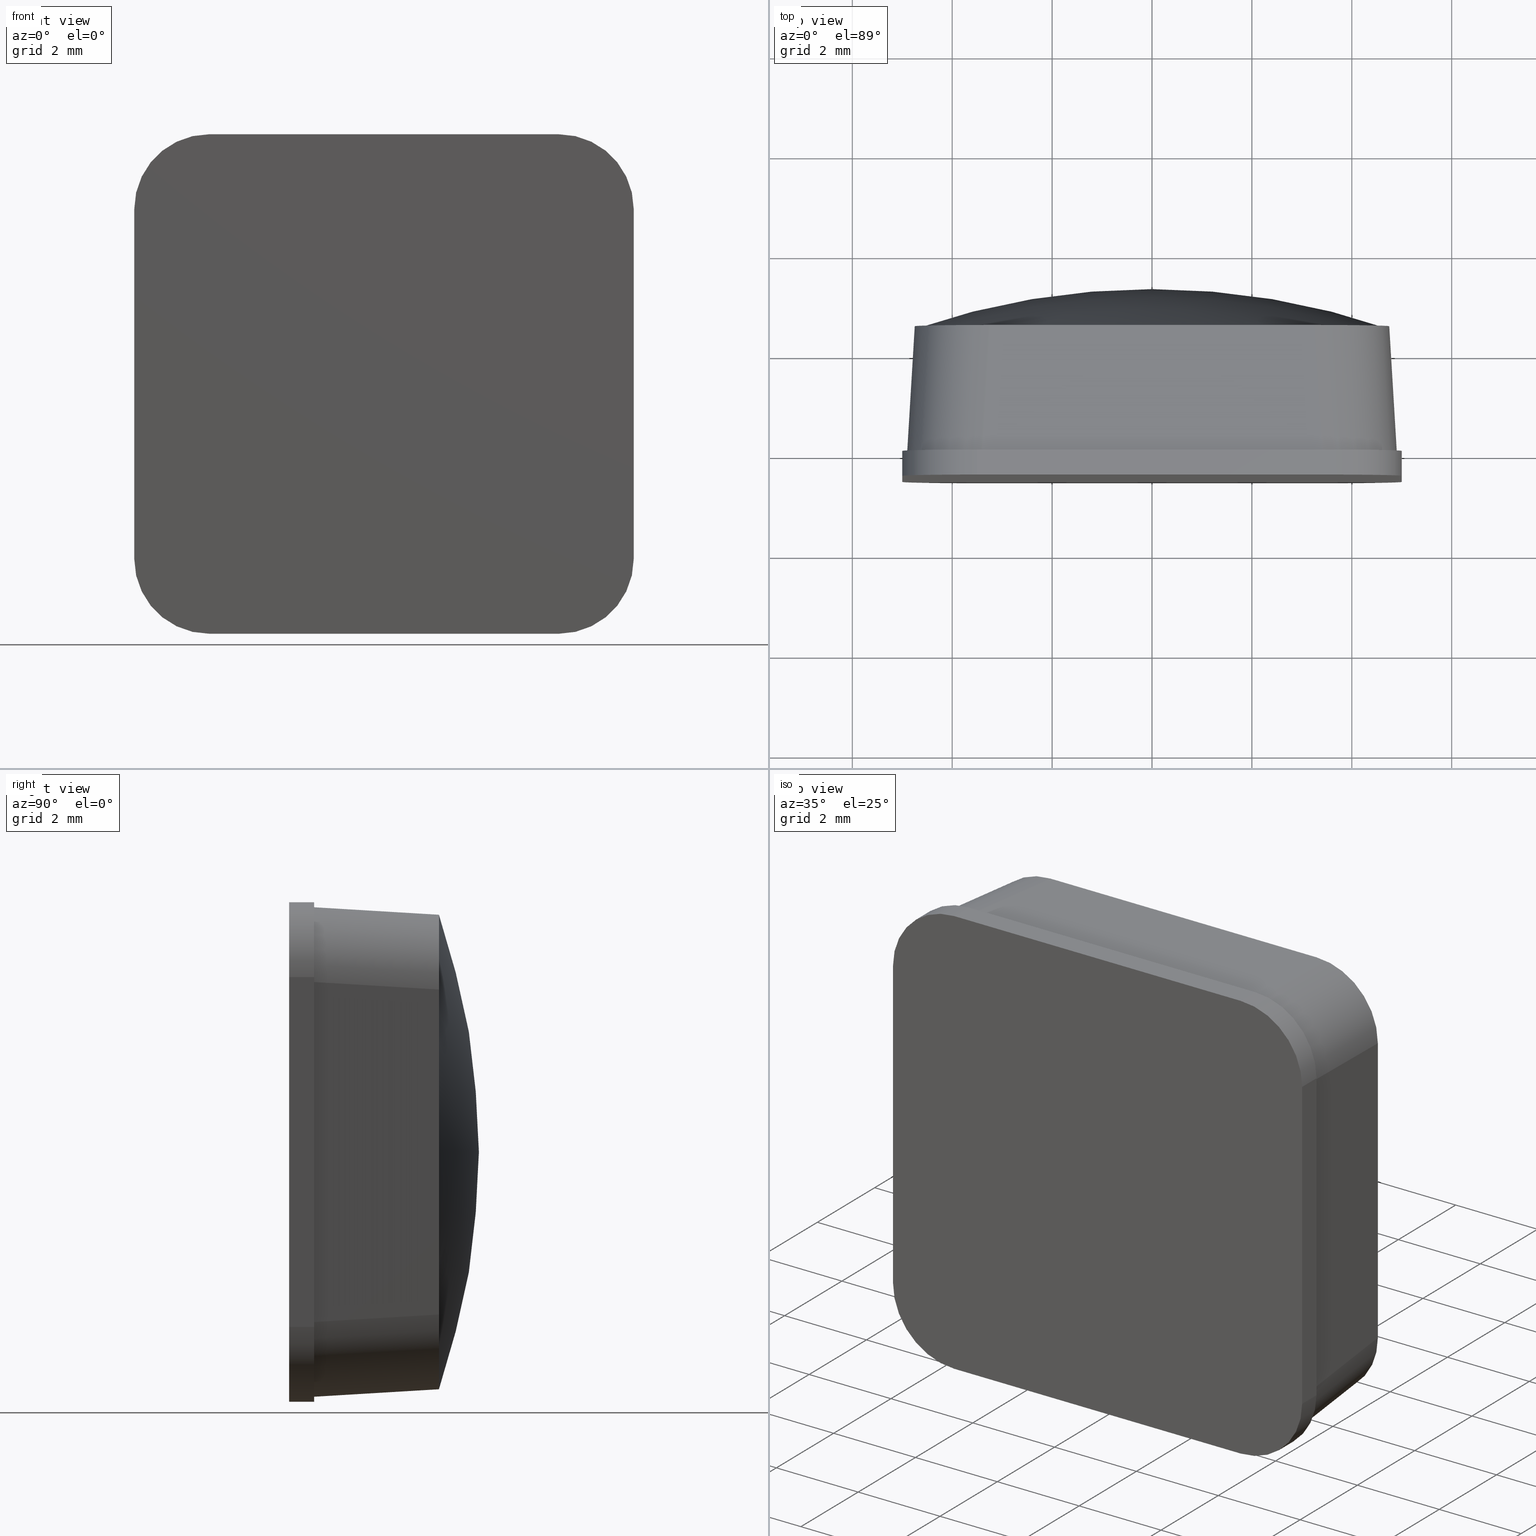
[diagram: canonical four-view strip — front | top / right | iso, engineering-drawing reading convention]
A machine part, canonical four-view strip (front | top / right | iso — engineering-drawing reading convention). The complete STEP part file that produces these views, byte-faithful:
ISO-10303-21;
HEADER;
/* Generated by software containing ST-Developer
 * from STEP Tools, Inc. (www.steptools.com) 
 */

FILE_DESCRIPTION(
/* description */ (''),
/* implementation_level */ '2;1');

FILE_NAME(
/* name */ '\\\\SYNOLOGYNAS\\web\\db2\\PR2-10-10\\\X2\B3C4BA74\X0\\\PR
2-10-10.stp',
/* time_stamp */ '2024-10-10T11:14:33+09:00',
/* author */ ('user'),
/* organization */ (''),
/* preprocessor_version */ 'ST-DEVELOPER v15.6',
/* originating_system */ 'Autodesk Inventor 2015',
/* authorisation */ '');

FILE_SCHEMA (('AUTOMOTIVE_DESIGN { 1 0 10303 214 3 1 1 }'));
ENDSEC;

DATA;
#10=MECHANICAL_DESIGN_GEOMETRIC_PRESENTATION_REPRESENTATION('',(#13),#693);
#11=SHAPE_REPRESENTATION_RELATIONSHIP('SRR','None',#702,#12);
#12=ADVANCED_BREP_SHAPE_REPRESENTATION($,(#14),#692);
#13=STYLED_ITEM('',(#711),#14);
#14=MANIFOLD_SOLID_BREP('\X2\C194B9ACB4DC\X0\1',#405);
#15=FACE_BOUND('',#85,.T.);
#16=SPHERICAL_SURFACE('',#445,14.5015625);
#17=ELLIPSE('',#416,1.50539031483533,1.5);
#18=ELLIPSE('',#417,1.50539031483533,1.5);
#19=ELLIPSE('',#424,1.50539031483533,1.5);
#20=ELLIPSE('',#425,1.50539031483533,1.5);
#21=ELLIPSE('',#433,1.50539031483533,1.5);
#22=ELLIPSE('',#434,1.50539031483533,1.5);
#23=ELLIPSE('',#441,1.50539031483533,1.5);
#24=ELLIPSE('',#442,1.50539031483533,1.5);
#25=PLANE('',#410);
#26=PLANE('',#414);
#27=PLANE('',#418);
#28=PLANE('',#419);
#29=PLANE('',#426);
#30=PLANE('',#427);
#31=PLANE('',#431);
#32=PLANE('',#435);
#33=PLANE('',#437);
#34=PLANE('',#443);
#35=PLANE('',#446);
#36=PLANE('',#447);
#37=PLANE('',#448);
#38=PLANE('',#449);
#39=FACE_OUTER_BOUND('',#62,.T.);
#40=FACE_OUTER_BOUND('',#63,.T.);
#41=FACE_OUTER_BOUND('',#64,.T.);
#42=FACE_OUTER_BOUND('',#65,.T.);
#43=FACE_OUTER_BOUND('',#66,.T.);
#44=FACE_OUTER_BOUND('',#67,.T.);
#45=FACE_OUTER_BOUND('',#68,.T.);
#46=FACE_OUTER_BOUND('',#69,.T.);
#47=FACE_OUTER_BOUND('',#70,.T.);
#48=FACE_OUTER_BOUND('',#71,.T.);
#49=FACE_OUTER_BOUND('',#72,.T.);
#50=FACE_OUTER_BOUND('',#73,.T.);
#51=FACE_OUTER_BOUND('',#74,.T.);
#52=FACE_OUTER_BOUND('',#75,.T.);
#53=FACE_OUTER_BOUND('',#76,.T.);
#54=FACE_OUTER_BOUND('',#77,.T.);
#55=FACE_OUTER_BOUND('',#78,.T.);
#56=FACE_OUTER_BOUND('',#79,.T.);
#57=FACE_OUTER_BOUND('',#80,.T.);
#58=FACE_OUTER_BOUND('',#81,.T.);
#59=FACE_OUTER_BOUND('',#82,.T.);
#60=FACE_OUTER_BOUND('',#83,.T.);
#61=FACE_OUTER_BOUND('',#84,.T.);
#62=EDGE_LOOP('',(#262,#263,#264,#265));
#63=EDGE_LOOP('',(#266,#267,#268,#269,#270,#271,#272,#273));
#64=EDGE_LOOP('',(#274,#275,#276,#277));
#65=EDGE_LOOP('',(#278,#279,#280,#281));
#66=EDGE_LOOP('',(#282,#283,#284,#285,#286));
#67=EDGE_LOOP('',(#287,#288,#289,#290));
#68=EDGE_LOOP('',(#291,#292,#293,#294));
#69=EDGE_LOOP('',(#295,#296,#297,#298));
#70=EDGE_LOOP('',(#299,#300,#301,#302,#303));
#71=EDGE_LOOP('',(#304,#305,#306,#307));
#72=EDGE_LOOP('',(#308,#309,#310,#311));
#73=EDGE_LOOP('',(#312,#313,#314,#315));
#74=EDGE_LOOP('',(#316,#317,#318,#319));
#75=EDGE_LOOP('',(#320,#321,#322,#323));
#76=EDGE_LOOP('',(#324,#325,#326,#327,#328));
#77=EDGE_LOOP('',(#329,#330,#331,#332));
#78=EDGE_LOOP('',(#333,#334,#335,#336));
#79=EDGE_LOOP('',(#337,#338,#339,#340));
#80=EDGE_LOOP('',(#341,#342,#343,#344));
#81=EDGE_LOOP('',(#345,#346,#347,#348,#349));
#82=EDGE_LOOP('',(#350,#351,#352,#353));
#83=EDGE_LOOP('',(#354,#355,#356,#357));
#84=EDGE_LOOP('',(#358,#359,#360,#361,#362,#363,#364,#365));
#85=EDGE_LOOP('',(#366,#367,#368,#369,#370,#371,#372,#373));
#86=LINE('',#580,#122);
#87=LINE('',#583,#123);
#88=LINE('',#586,#124);
#89=LINE('',#590,#125);
#90=LINE('',#594,#126);
#91=LINE('',#597,#127);
#92=LINE('',#600,#128);
#93=LINE('',#601,#129);
#94=LINE('',#607,#130);
#95=LINE('',#610,#131);
#96=LINE('',#613,#132);
#97=LINE('',#615,#133);
#98=LINE('',#617,#134);
#99=LINE('',#618,#135);
#100=LINE('',#621,#136);
#101=LINE('',#626,#137);
#102=LINE('',#631,#138);
#103=LINE('',#635,#139);
#104=LINE('',#637,#140);
#105=LINE('',#639,#141);
#106=LINE('',#640,#142);
#107=LINE('',#645,#143);
#108=LINE('',#648,#144);
#109=LINE('',#651,#145);
#110=LINE('',#652,#146);
#111=LINE('',#658,#147);
#112=LINE('',#661,#148);
#113=LINE('',#664,#149);
#114=LINE('',#666,#150);
#115=LINE('',#669,#151);
#116=LINE('',#671,#152);
#117=LINE('',#672,#153);
#118=LINE('',#675,#154);
#119=LINE('',#684,#155);
#120=LINE('',#686,#156);
#121=LINE('',#688,#157);
#122=VECTOR('',#456,0.5);
#123=VECTOR('',#459,0.5);
#124=VECTOR('',#462,7.);
#125=VECTOR('',#465,7.);
#126=VECTOR('',#468,7.);
#127=VECTOR('',#471,7.);
#128=VECTOR('',#474,7.);
#129=VECTOR('',#475,0.5);
#130=VECTOR('',#480,2.50898385805888);
#131=VECTOR('',#483,2.50898385805888);
#132=VECTOR('',#486,3.25269273180133);
#133=VECTOR('',#487,3.25269273180133);
#134=VECTOR('',#488,2.50898385805888);
#135=VECTOR('',#489,6.80538546360266);
#136=VECTOR('',#492,3.25269273180133);
#137=VECTOR('',#499,0.5);
#138=VECTOR('',#504,2.50898385805888);
#139=VECTOR('',#509,3.25269273180134);
#140=VECTOR('',#510,3.25269273180133);
#141=VECTOR('',#511,2.50898385805888);
#142=VECTOR('',#512,6.80538546360267);
#143=VECTOR('',#519,0.5);
#144=VECTOR('',#522,0.5);
#145=VECTOR('',#525,0.5);
#146=VECTOR('',#526,7.);
#147=VECTOR('',#531,2.50898385805888);
#148=VECTOR('',#534,2.50898385805888);
#149=VECTOR('',#537,3.25269273180133);
#150=VECTOR('',#540,3.25269273180133);
#151=VECTOR('',#543,6.80538546360266);
#152=VECTOR('',#544,2.50898385805888);
#153=VECTOR('',#545,3.25269273180133);
#154=VECTOR('',#548,0.5);
#155=VECTOR('',#565,6.80538546360266);
#156=VECTOR('',#568,7.);
#157=VECTOR('',#571,7.);
#158=CIRCLE('',#408,1.5);
#159=CIRCLE('',#409,1.5);
#160=CIRCLE('',#411,1.5);
#161=CIRCLE('',#412,1.5);
#162=CIRCLE('',#413,1.5);
#163=CIRCLE('',#420,4.75000000000002);
#164=CIRCLE('',#422,1.5);
#165=CIRCLE('',#428,4.75000000000002);
#166=CIRCLE('',#430,1.5);
#167=CIRCLE('',#436,4.75000000000002);
#168=CIRCLE('',#439,1.5);
#169=CIRCLE('',#444,4.75000000000002);
#170=VERTEX_POINT('',#576);
#171=VERTEX_POINT('',#577);
#172=VERTEX_POINT('',#579);
#173=VERTEX_POINT('',#581);
#174=VERTEX_POINT('',#585);
#175=VERTEX_POINT('',#587);
#176=VERTEX_POINT('',#589);
#177=VERTEX_POINT('',#591);
#178=VERTEX_POINT('',#593);
#179=VERTEX_POINT('',#595);
#180=VERTEX_POINT('',#599);
#181=VERTEX_POINT('',#603);
#182=VERTEX_POINT('',#604);
#183=VERTEX_POINT('',#606);
#184=VERTEX_POINT('',#608);
#185=VERTEX_POINT('',#612);
#186=VERTEX_POINT('',#614);
#187=VERTEX_POINT('',#616);
#188=VERTEX_POINT('',#620);
#189=VERTEX_POINT('',#624);
#190=VERTEX_POINT('',#628);
#191=VERTEX_POINT('',#630);
#192=VERTEX_POINT('',#634);
#193=VERTEX_POINT('',#636);
#194=VERTEX_POINT('',#638);
#195=VERTEX_POINT('',#644);
#196=VERTEX_POINT('',#646);
#197=VERTEX_POINT('',#650);
#198=VERTEX_POINT('',#654);
#199=VERTEX_POINT('',#655);
#200=VERTEX_POINT('',#657);
#201=VERTEX_POINT('',#659);
#202=VERTEX_POINT('',#663);
#203=VERTEX_POINT('',#668);
#204=VERTEX_POINT('',#670);
#205=VERTEX_POINT('',#674);
#206=EDGE_CURVE('',#170,#171,#158,.T.);
#207=EDGE_CURVE('',#171,#172,#86,.T.);
#208=EDGE_CURVE('',#172,#173,#159,.T.);
#209=EDGE_CURVE('',#173,#170,#87,.T.);
#210=EDGE_CURVE('',#170,#174,#88,.T.);
#211=EDGE_CURVE('',#175,#174,#160,.T.);
#212=EDGE_CURVE('',#175,#176,#89,.T.);
#213=EDGE_CURVE('',#177,#176,#161,.T.);
#214=EDGE_CURVE('',#177,#178,#90,.T.);
#215=EDGE_CURVE('',#179,#178,#162,.T.);
#216=EDGE_CURVE('',#179,#171,#91,.T.);
#217=EDGE_CURVE('',#173,#180,#92,.T.);
#218=EDGE_CURVE('',#174,#180,#93,.T.);
#219=EDGE_CURVE('',#181,#182,#17,.T.);
#220=EDGE_CURVE('',#182,#183,#94,.T.);
#221=EDGE_CURVE('',#183,#184,#18,.F.);
#222=EDGE_CURVE('',#184,#181,#95,.T.);
#223=EDGE_CURVE('',#182,#185,#96,.T.);
#224=EDGE_CURVE('',#185,#186,#97,.T.);
#225=EDGE_CURVE('',#187,#186,#98,.T.);
#226=EDGE_CURVE('',#183,#187,#99,.T.);
#227=EDGE_CURVE('',#188,#181,#100,.T.);
#228=EDGE_CURVE('',#188,#185,#163,.T.);
#229=EDGE_CURVE('',#180,#189,#164,.T.);
#230=EDGE_CURVE('',#189,#175,#101,.T.);
#231=EDGE_CURVE('',#186,#190,#19,.T.);
#232=EDGE_CURVE('',#190,#191,#102,.T.);
#233=EDGE_CURVE('',#191,#187,#20,.F.);
#234=EDGE_CURVE('',#190,#192,#103,.T.);
#235=EDGE_CURVE('',#192,#193,#104,.T.);
#236=EDGE_CURVE('',#194,#193,#105,.T.);
#237=EDGE_CURVE('',#191,#194,#106,.T.);
#238=EDGE_CURVE('',#185,#192,#165,.T.);
#239=EDGE_CURVE('',#178,#195,#107,.T.);
#240=EDGE_CURVE('',#195,#196,#166,.T.);
#241=EDGE_CURVE('',#196,#179,#108,.T.);
#242=EDGE_CURVE('',#197,#177,#109,.T.);
#243=EDGE_CURVE('',#197,#195,#110,.T.);
#244=EDGE_CURVE('',#198,#199,#21,.T.);
#245=EDGE_CURVE('',#199,#200,#111,.T.);
#246=EDGE_CURVE('',#200,#201,#22,.F.);
#247=EDGE_CURVE('',#201,#198,#112,.T.);
#248=EDGE_CURVE('',#202,#198,#113,.T.);
#249=EDGE_CURVE('',#202,#188,#167,.T.);
#250=EDGE_CURVE('',#199,#188,#114,.T.);
#251=EDGE_CURVE('',#203,#201,#115,.T.);
#252=EDGE_CURVE('',#204,#203,#116,.T.);
#253=EDGE_CURVE('',#204,#202,#117,.T.);
#254=EDGE_CURVE('',#176,#205,#118,.T.);
#255=EDGE_CURVE('',#205,#197,#168,.T.);
#256=EDGE_CURVE('',#193,#204,#23,.T.);
#257=EDGE_CURVE('',#203,#194,#24,.F.);
#258=EDGE_CURVE('',#192,#202,#169,.T.);
#259=EDGE_CURVE('',#200,#184,#119,.T.);
#260=EDGE_CURVE('',#189,#205,#120,.T.);
#261=EDGE_CURVE('',#196,#172,#121,.T.);
#262=ORIENTED_EDGE('',*,*,#206,.T.);
#263=ORIENTED_EDGE('',*,*,#207,.T.);
#264=ORIENTED_EDGE('',*,*,#208,.T.);
#265=ORIENTED_EDGE('',*,*,#209,.T.);
#266=ORIENTED_EDGE('',*,*,#206,.F.);
#267=ORIENTED_EDGE('',*,*,#210,.T.);
#268=ORIENTED_EDGE('',*,*,#211,.F.);
#269=ORIENTED_EDGE('',*,*,#212,.T.);
#270=ORIENTED_EDGE('',*,*,#213,.F.);
#271=ORIENTED_EDGE('',*,*,#214,.T.);
#272=ORIENTED_EDGE('',*,*,#215,.F.);
#273=ORIENTED_EDGE('',*,*,#216,.T.);
#274=ORIENTED_EDGE('',*,*,#209,.F.);
#275=ORIENTED_EDGE('',*,*,#217,.T.);
#276=ORIENTED_EDGE('',*,*,#218,.F.);
#277=ORIENTED_EDGE('',*,*,#210,.F.);
#278=ORIENTED_EDGE('',*,*,#219,.T.);
#279=ORIENTED_EDGE('',*,*,#220,.T.);
#280=ORIENTED_EDGE('',*,*,#221,.T.);
#281=ORIENTED_EDGE('',*,*,#222,.T.);
#282=ORIENTED_EDGE('',*,*,#220,.F.);
#283=ORIENTED_EDGE('',*,*,#223,.T.);
#284=ORIENTED_EDGE('',*,*,#224,.T.);
#285=ORIENTED_EDGE('',*,*,#225,.F.);
#286=ORIENTED_EDGE('',*,*,#226,.F.);
#287=ORIENTED_EDGE('',*,*,#219,.F.);
#288=ORIENTED_EDGE('',*,*,#227,.F.);
#289=ORIENTED_EDGE('',*,*,#228,.T.);
#290=ORIENTED_EDGE('',*,*,#223,.F.);
#291=ORIENTED_EDGE('',*,*,#211,.T.);
#292=ORIENTED_EDGE('',*,*,#218,.T.);
#293=ORIENTED_EDGE('',*,*,#229,.T.);
#294=ORIENTED_EDGE('',*,*,#230,.T.);
#295=ORIENTED_EDGE('',*,*,#231,.T.);
#296=ORIENTED_EDGE('',*,*,#232,.T.);
#297=ORIENTED_EDGE('',*,*,#233,.T.);
#298=ORIENTED_EDGE('',*,*,#225,.T.);
#299=ORIENTED_EDGE('',*,*,#232,.F.);
#300=ORIENTED_EDGE('',*,*,#234,.T.);
#301=ORIENTED_EDGE('',*,*,#235,.T.);
#302=ORIENTED_EDGE('',*,*,#236,.F.);
#303=ORIENTED_EDGE('',*,*,#237,.F.);
#304=ORIENTED_EDGE('',*,*,#231,.F.);
#305=ORIENTED_EDGE('',*,*,#224,.F.);
#306=ORIENTED_EDGE('',*,*,#238,.T.);
#307=ORIENTED_EDGE('',*,*,#234,.F.);
#308=ORIENTED_EDGE('',*,*,#215,.T.);
#309=ORIENTED_EDGE('',*,*,#239,.T.);
#310=ORIENTED_EDGE('',*,*,#240,.T.);
#311=ORIENTED_EDGE('',*,*,#241,.T.);
#312=ORIENTED_EDGE('',*,*,#239,.F.);
#313=ORIENTED_EDGE('',*,*,#214,.F.);
#314=ORIENTED_EDGE('',*,*,#242,.F.);
#315=ORIENTED_EDGE('',*,*,#243,.T.);
#316=ORIENTED_EDGE('',*,*,#244,.T.);
#317=ORIENTED_EDGE('',*,*,#245,.T.);
#318=ORIENTED_EDGE('',*,*,#246,.T.);
#319=ORIENTED_EDGE('',*,*,#247,.T.);
#320=ORIENTED_EDGE('',*,*,#244,.F.);
#321=ORIENTED_EDGE('',*,*,#248,.F.);
#322=ORIENTED_EDGE('',*,*,#249,.T.);
#323=ORIENTED_EDGE('',*,*,#250,.F.);
#324=ORIENTED_EDGE('',*,*,#247,.F.);
#325=ORIENTED_EDGE('',*,*,#251,.F.);
#326=ORIENTED_EDGE('',*,*,#252,.F.);
#327=ORIENTED_EDGE('',*,*,#253,.T.);
#328=ORIENTED_EDGE('',*,*,#248,.T.);
#329=ORIENTED_EDGE('',*,*,#213,.T.);
#330=ORIENTED_EDGE('',*,*,#254,.T.);
#331=ORIENTED_EDGE('',*,*,#255,.T.);
#332=ORIENTED_EDGE('',*,*,#242,.T.);
#333=ORIENTED_EDGE('',*,*,#256,.T.);
#334=ORIENTED_EDGE('',*,*,#252,.T.);
#335=ORIENTED_EDGE('',*,*,#257,.T.);
#336=ORIENTED_EDGE('',*,*,#236,.T.);
#337=ORIENTED_EDGE('',*,*,#256,.F.);
#338=ORIENTED_EDGE('',*,*,#235,.F.);
#339=ORIENTED_EDGE('',*,*,#258,.T.);
#340=ORIENTED_EDGE('',*,*,#253,.F.);
#341=ORIENTED_EDGE('',*,*,#249,.F.);
#342=ORIENTED_EDGE('',*,*,#258,.F.);
#343=ORIENTED_EDGE('',*,*,#238,.F.);
#344=ORIENTED_EDGE('',*,*,#228,.F.);
#345=ORIENTED_EDGE('',*,*,#222,.F.);
#346=ORIENTED_EDGE('',*,*,#259,.F.);
#347=ORIENTED_EDGE('',*,*,#245,.F.);
#348=ORIENTED_EDGE('',*,*,#250,.T.);
#349=ORIENTED_EDGE('',*,*,#227,.T.);
#350=ORIENTED_EDGE('',*,*,#230,.F.);
#351=ORIENTED_EDGE('',*,*,#260,.T.);
#352=ORIENTED_EDGE('',*,*,#254,.F.);
#353=ORIENTED_EDGE('',*,*,#212,.F.);
#354=ORIENTED_EDGE('',*,*,#207,.F.);
#355=ORIENTED_EDGE('',*,*,#216,.F.);
#356=ORIENTED_EDGE('',*,*,#241,.F.);
#357=ORIENTED_EDGE('',*,*,#261,.T.);
#358=ORIENTED_EDGE('',*,*,#208,.F.);
#359=ORIENTED_EDGE('',*,*,#261,.F.);
#360=ORIENTED_EDGE('',*,*,#240,.F.);
#361=ORIENTED_EDGE('',*,*,#243,.F.);
#362=ORIENTED_EDGE('',*,*,#255,.F.);
#363=ORIENTED_EDGE('',*,*,#260,.F.);
#364=ORIENTED_EDGE('',*,*,#229,.F.);
#365=ORIENTED_EDGE('',*,*,#217,.F.);
#366=ORIENTED_EDGE('',*,*,#226,.T.);
#367=ORIENTED_EDGE('',*,*,#233,.F.);
#368=ORIENTED_EDGE('',*,*,#237,.T.);
#369=ORIENTED_EDGE('',*,*,#257,.F.);
#370=ORIENTED_EDGE('',*,*,#251,.T.);
#371=ORIENTED_EDGE('',*,*,#246,.F.);
#372=ORIENTED_EDGE('',*,*,#259,.T.);
#373=ORIENTED_EDGE('',*,*,#221,.F.);
#374=CYLINDRICAL_SURFACE('',#407,1.5);
#375=CYLINDRICAL_SURFACE('',#415,1.5);
#376=CYLINDRICAL_SURFACE('',#421,1.5);
#377=CYLINDRICAL_SURFACE('',#423,1.5);
#378=CYLINDRICAL_SURFACE('',#429,1.5);
#379=CYLINDRICAL_SURFACE('',#432,1.5);
#380=CYLINDRICAL_SURFACE('',#438,1.5);
#381=CYLINDRICAL_SURFACE('',#440,1.5);
#382=ADVANCED_FACE('',(#39),#374,.T.);
#383=ADVANCED_FACE('',(#40),#25,.T.);
#384=ADVANCED_FACE('',(#41),#26,.T.);
#385=ADVANCED_FACE('',(#42),#375,.T.);
#386=ADVANCED_FACE('',(#43),#27,.T.);
#387=ADVANCED_FACE('',(#44),#28,.T.);
#388=ADVANCED_FACE('',(#45),#376,.T.);
#389=ADVANCED_FACE('',(#46),#377,.T.);
#390=ADVANCED_FACE('',(#47),#29,.T.);
#391=ADVANCED_FACE('',(#48),#30,.T.);
#392=ADVANCED_FACE('',(#49),#378,.T.);
#393=ADVANCED_FACE('',(#50),#31,.T.);
#394=ADVANCED_FACE('',(#51),#379,.T.);
#395=ADVANCED_FACE('',(#52),#32,.T.);
#396=ADVANCED_FACE('',(#53),#33,.T.);
#397=ADVANCED_FACE('',(#54),#380,.T.);
#398=ADVANCED_FACE('',(#55),#381,.T.);
#399=ADVANCED_FACE('',(#56),#34,.T.);
#400=ADVANCED_FACE('',(#57),#16,.T.);
#401=ADVANCED_FACE('',(#58),#35,.T.);
#402=ADVANCED_FACE('',(#59),#36,.T.);
#403=ADVANCED_FACE('',(#60),#37,.T.);
#404=ADVANCED_FACE('',(#61,#15),#38,.F.);
#405=CLOSED_SHELL('',(#382,#383,#384,#385,#386,#387,#388,#389,#390,#391,
#392,#393,#394,#395,#396,#397,#398,#399,#400,#401,#402,#403,#404));
#406=AXIS2_PLACEMENT_3D('placement',#574,#450,#451);
#407=AXIS2_PLACEMENT_3D('',#575,#452,#453);
#408=AXIS2_PLACEMENT_3D('',#578,#454,#455);
#409=AXIS2_PLACEMENT_3D('',#582,#457,#458);
#410=AXIS2_PLACEMENT_3D('',#584,#460,#461);
#411=AXIS2_PLACEMENT_3D('',#588,#463,#464);
#412=AXIS2_PLACEMENT_3D('',#592,#466,#467);
#413=AXIS2_PLACEMENT_3D('',#596,#469,#470);
#414=AXIS2_PLACEMENT_3D('',#598,#472,#473);
#415=AXIS2_PLACEMENT_3D('',#602,#476,#477);
#416=AXIS2_PLACEMENT_3D('',#605,#478,#479);
#417=AXIS2_PLACEMENT_3D('',#609,#481,#482);
#418=AXIS2_PLACEMENT_3D('',#611,#484,#485);
#419=AXIS2_PLACEMENT_3D('',#619,#490,#491);
#420=AXIS2_PLACEMENT_3D('',#622,#493,#494);
#421=AXIS2_PLACEMENT_3D('',#623,#495,#496);
#422=AXIS2_PLACEMENT_3D('',#625,#497,#498);
#423=AXIS2_PLACEMENT_3D('',#627,#500,#501);
#424=AXIS2_PLACEMENT_3D('',#629,#502,#503);
#425=AXIS2_PLACEMENT_3D('',#632,#505,#506);
#426=AXIS2_PLACEMENT_3D('',#633,#507,#508);
#427=AXIS2_PLACEMENT_3D('',#641,#513,#514);
#428=AXIS2_PLACEMENT_3D('',#642,#515,#516);
#429=AXIS2_PLACEMENT_3D('',#643,#517,#518);
#430=AXIS2_PLACEMENT_3D('',#647,#520,#521);
#431=AXIS2_PLACEMENT_3D('',#649,#523,#524);
#432=AXIS2_PLACEMENT_3D('',#653,#527,#528);
#433=AXIS2_PLACEMENT_3D('',#656,#529,#530);
#434=AXIS2_PLACEMENT_3D('',#660,#532,#533);
#435=AXIS2_PLACEMENT_3D('',#662,#535,#536);
#436=AXIS2_PLACEMENT_3D('',#665,#538,#539);
#437=AXIS2_PLACEMENT_3D('',#667,#541,#542);
#438=AXIS2_PLACEMENT_3D('',#673,#546,#547);
#439=AXIS2_PLACEMENT_3D('',#676,#549,#550);
#440=AXIS2_PLACEMENT_3D('',#677,#551,#552);
#441=AXIS2_PLACEMENT_3D('',#678,#553,#554);
#442=AXIS2_PLACEMENT_3D('',#679,#555,#556);
#443=AXIS2_PLACEMENT_3D('',#680,#557,#558);
#444=AXIS2_PLACEMENT_3D('',#681,#559,#560);
#445=AXIS2_PLACEMENT_3D('',#682,#561,#562);
#446=AXIS2_PLACEMENT_3D('',#683,#563,#564);
#447=AXIS2_PLACEMENT_3D('',#685,#566,#567);
#448=AXIS2_PLACEMENT_3D('',#687,#569,#570);
#449=AXIS2_PLACEMENT_3D('',#689,#572,#573);
#450=DIRECTION('axis',(0.,0.,1.));
#451=DIRECTION('refdir',(1.,0.,0.));
#452=DIRECTION('center_axis',(0.,-1.,0.));
#453=DIRECTION('ref_axis',(-0.707106781186548,0.,-0.707106781186548));
#454=DIRECTION('center_axis',(0.,1.,0.));
#455=DIRECTION('ref_axis',(-0.707106781186548,0.,-0.707106781186548));
#456=DIRECTION('',(0.,1.,0.));
#457=DIRECTION('center_axis',(0.,-1.,0.));
#458=DIRECTION('ref_axis',(-0.707106781186548,0.,-0.707106781186548));
#459=DIRECTION('',(0.,-1.,0.));
#460=DIRECTION('center_axis',(0.,-1.,0.));
#461=DIRECTION('ref_axis',(0.,0.,-1.));
#462=DIRECTION('',(1.,0.,1.66533453693773E-16));
#463=DIRECTION('center_axis',(0.,1.,0.));
#464=DIRECTION('ref_axis',(0.707106781186547,0.,-0.707106781186548));
#465=DIRECTION('',(3.33066907387547E-16,0.,1.));
#466=DIRECTION('center_axis',(0.,1.,0.));
#467=DIRECTION('ref_axis',(0.707106781186548,0.,0.707106781186547));
#468=DIRECTION('',(-1.,0.,-5.55111512312578E-17));
#469=DIRECTION('center_axis',(0.,1.,0.));
#470=DIRECTION('ref_axis',(-0.707106781186548,0.,0.707106781186547));
#471=DIRECTION('',(-1.66533453693773E-16,0.,-1.));
#472=DIRECTION('center_axis',(1.66533453693773E-16,0.,-1.));
#473=DIRECTION('ref_axis',(1.,0.,1.77635683940025E-16));
#474=DIRECTION('',(1.,0.,1.66533453693773E-16));
#475=DIRECTION('',(0.,1.,0.));
#476=DIRECTION('center_axis',(-0.0597851594454064,-0.996419324090102,-0.0597851594454059));
#477=DIRECTION('ref_axis',(-0.704574860969427,0.0845489833163313,-0.704574860969427));
#478=DIRECTION('center_axis',(0.,-1.,0.));
#479=DIRECTION('ref_axis',(-0.707106781186547,0.,-0.707106781186548));
#480=DIRECTION('',(-0.0597851594454064,-0.996419324090101,-0.0597851594454059));
#481=DIRECTION('center_axis',(0.,-1.,0.));
#482=DIRECTION('ref_axis',(-0.707106781186547,0.,-0.707106781186548));
#483=DIRECTION('',(0.0597851594454064,0.996419324090101,0.0597851594454059));
#484=DIRECTION('center_axis',(-6.09056418481003E-16,0.0598922907279466,
-0.998204845465779));
#485=DIRECTION('ref_axis',(-1.,0.,6.21724893790088E-16));
#486=DIRECTION('',(1.,0.,5.84327907697451E-17));
#487=DIRECTION('',(1.,0.,5.84327907697451E-17));
#488=DIRECTION('',(-0.0597851594454067,0.996419324090101,0.059785159445406));
#489=DIRECTION('',(1.,0.,-6.10151735134893E-16));
#490=DIRECTION('center_axis',(0.,1.,0.));
#491=DIRECTION('ref_axis',(0.,0.,1.));
#492=DIRECTION('',(-1.1686558153949E-16,0.,-1.));
#493=DIRECTION('center_axis',(0.,-1.,0.));
#494=DIRECTION('ref_axis',(0.,0.,-1.));
#495=DIRECTION('center_axis',(0.,-1.,0.));
#496=DIRECTION('ref_axis',(0.707106781186547,0.,-0.707106781186548));
#497=DIRECTION('center_axis',(0.,-1.,0.));
#498=DIRECTION('ref_axis',(0.707106781186547,0.,-0.707106781186548));
#499=DIRECTION('',(0.,-1.,0.));
#500=DIRECTION('center_axis',(0.0597851594454067,-0.996419324090101,-0.059785159445406));
#501=DIRECTION('ref_axis',(0.704574860969427,0.0845489833163314,-0.704574860969427));
#502=DIRECTION('center_axis',(0.,-1.,0.));
#503=DIRECTION('ref_axis',(0.707106781186548,0.,-0.707106781186548));
#504=DIRECTION('',(0.0597851594454067,-0.996419324090101,-0.059785159445406));
#505=DIRECTION('center_axis',(0.,-1.,0.));
#506=DIRECTION('ref_axis',(0.707106781186548,0.,-0.707106781186548));
#507=DIRECTION('center_axis',(0.998204845465779,0.0598922907279474,2.21475061265819E-16));
#508=DIRECTION('ref_axis',(1.77635683940025E-16,0.,-1.));
#509=DIRECTION('',(1.1686558153949E-16,0.,1.));
#510=DIRECTION('',(1.1686558153949E-16,0.,1.));
#511=DIRECTION('',(-0.0597851594454067,0.996419324090101,-0.0597851594454061));
#512=DIRECTION('',(-2.2187335823087E-16,0.,1.));
#513=DIRECTION('center_axis',(0.,1.,0.));
#514=DIRECTION('ref_axis',(0.,0.,1.));
#515=DIRECTION('center_axis',(0.,-1.,0.));
#516=DIRECTION('ref_axis',(0.,0.,-1.));
#517=DIRECTION('center_axis',(0.,-1.,0.));
#518=DIRECTION('ref_axis',(-0.707106781186548,0.,0.707106781186547));
#519=DIRECTION('',(0.,1.,0.));
#520=DIRECTION('center_axis',(0.,-1.,0.));
#521=DIRECTION('ref_axis',(-0.707106781186548,0.,0.707106781186547));
#522=DIRECTION('',(0.,-1.,0.));
#523=DIRECTION('center_axis',(-5.55111512312578E-17,0.,1.));
#524=DIRECTION('ref_axis',(-1.,0.,-8.88178419700125E-17));
#525=DIRECTION('',(0.,-1.,0.));
#526=DIRECTION('',(-1.,0.,-5.55111512312578E-17));
#527=DIRECTION('center_axis',(-0.0597851594454063,-0.996419324090101,0.0597851594454061));
#528=DIRECTION('ref_axis',(-0.704574860969427,0.0845489833163313,0.704574860969428));
#529=DIRECTION('center_axis',(0.,-1.,0.));
#530=DIRECTION('ref_axis',(-0.707106781186547,0.,0.707106781186548));
#531=DIRECTION('',(-0.0597851594454063,-0.996419324090101,0.0597851594454061));
#532=DIRECTION('center_axis',(0.,-1.,0.));
#533=DIRECTION('ref_axis',(-0.707106781186547,0.,0.707106781186548));
#534=DIRECTION('',(0.0597851594454063,0.996419324090101,-0.0597851594454061));
#535=DIRECTION('center_axis',(0.,1.,0.));
#536=DIRECTION('ref_axis',(0.,0.,1.));
#537=DIRECTION('',(-1.,0.,-1.1686558153949E-16));
#538=DIRECTION('center_axis',(0.,-1.,0.));
#539=DIRECTION('ref_axis',(0.,0.,-1.));
#540=DIRECTION('',(-1.1686558153949E-16,0.,-1.));
#541=DIRECTION('center_axis',(-1.19965658185652E-16,0.0598922907279468,
0.998204845465779));
#542=DIRECTION('ref_axis',(1.,0.,8.88178419700125E-17));
#543=DIRECTION('',(-1.,0.,-1.20181402375055E-16));
#544=DIRECTION('',(0.0597851594454067,-0.996419324090101,0.0597851594454062));
#545=DIRECTION('',(-1.,0.,-1.1686558153949E-16));
#546=DIRECTION('center_axis',(0.,-1.,0.));
#547=DIRECTION('ref_axis',(0.707106781186548,0.,0.707106781186547));
#548=DIRECTION('',(0.,1.,0.));
#549=DIRECTION('center_axis',(0.,-1.,0.));
#550=DIRECTION('ref_axis',(0.707106781186548,0.,0.707106781186547));
#551=DIRECTION('center_axis',(0.0597851594454067,-0.996419324090101,0.0597851594454061));
#552=DIRECTION('ref_axis',(0.704574860969426,0.0845489833163319,0.704574860969427));
#553=DIRECTION('center_axis',(0.,-1.,0.));
#554=DIRECTION('ref_axis',(0.707106781186547,0.,0.707106781186548));
#555=DIRECTION('center_axis',(0.,-1.,0.));
#556=DIRECTION('ref_axis',(0.707106781186547,0.,0.707106781186548));
#557=DIRECTION('center_axis',(0.,1.,0.));
#558=DIRECTION('ref_axis',(0.,0.,1.));
#559=DIRECTION('center_axis',(0.,-1.,0.));
#560=DIRECTION('ref_axis',(0.,0.,-1.));
#561=DIRECTION('center_axis',(6.12323399573677E-17,0.,1.));
#562=DIRECTION('ref_axis',(1.,0.,0.));
#563=DIRECTION('center_axis',(-0.998204845465779,0.059892290727947,8.30531479746822E-17));
#564=DIRECTION('ref_axis',(8.88178419700125E-17,0.,1.));
#565=DIRECTION('',(-8.32025093365763E-17,0.,-1.));
#566=DIRECTION('center_axis',(1.,0.,-3.33066907387547E-16));
#567=DIRECTION('ref_axis',(3.5527136788005E-16,0.,1.));
#568=DIRECTION('',(3.33066907387547E-16,0.,1.));
#569=DIRECTION('center_axis',(-1.,0.,1.66533453693773E-16));
#570=DIRECTION('ref_axis',(-1.77635683940025E-16,0.,-1.));
#571=DIRECTION('',(-1.66533453693773E-16,0.,-1.));
#572=DIRECTION('center_axis',(0.,-1.,0.));
#573=DIRECTION('ref_axis',(0.,0.,-1.));
#574=CARTESIAN_POINT('',(0.,0.,0.));
#575=CARTESIAN_POINT('Origin',(-3.5,0.,-3.5));
#576=CARTESIAN_POINT('',(-3.5,-0.5,-5.));
#577=CARTESIAN_POINT('',(-5.,-0.5,-3.5));
#578=CARTESIAN_POINT('Origin',(-3.5,-0.5,-3.5));
#579=CARTESIAN_POINT('',(-5.,0.,-3.5));
#580=CARTESIAN_POINT('',(-5.,0.,-3.5));
#581=CARTESIAN_POINT('',(-3.5,0.,-5.));
#582=CARTESIAN_POINT('Origin',(-3.5,0.,-3.5));
#583=CARTESIAN_POINT('',(-3.5,0.,-5.));
#584=CARTESIAN_POINT('Origin',(-2.08166817117217E-16,-0.5,7.63278329429795E-16));
#585=CARTESIAN_POINT('',(3.5,-0.5,-5.));
#586=CARTESIAN_POINT('',(-5.,-0.5,-5.));
#587=CARTESIAN_POINT('',(5.,-0.5,-3.5));
#588=CARTESIAN_POINT('Origin',(3.5,-0.5,-3.5));
#589=CARTESIAN_POINT('',(5.,-0.5,3.5));
#590=CARTESIAN_POINT('',(5.,-0.5,-5.));
#591=CARTESIAN_POINT('',(3.5,-0.5,5.));
#592=CARTESIAN_POINT('Origin',(3.5,-0.5,3.5));
#593=CARTESIAN_POINT('',(-3.5,-0.5,5.));
#594=CARTESIAN_POINT('',(5.,-0.5,5.));
#595=CARTESIAN_POINT('',(-5.,-0.5,3.5));
#596=CARTESIAN_POINT('Origin',(-3.5,-0.5,3.5));
#597=CARTESIAN_POINT('',(-5.,-0.5,5.));
#598=CARTESIAN_POINT('Origin',(-5.,0.,-5.));
#599=CARTESIAN_POINT('',(3.5,0.,-5.));
#600=CARTESIAN_POINT('',(-5.,0.,-5.));
#601=CARTESIAN_POINT('',(3.5,0.,-5.));
#602=CARTESIAN_POINT('Origin',(-3.2410667450713,2.60392800940856,-3.2410667450713));
#603=CARTESIAN_POINT('',(-4.75,2.5,-3.25269273180133));
#604=CARTESIAN_POINT('',(-3.25269273180133,2.5,-4.75));
#605=CARTESIAN_POINT('Origin',(-3.24730242563582,2.5,-3.24730242563582));
#606=CARTESIAN_POINT('',(-3.40269273180133,2.77555756156289E-16,-4.9));
#607=CARTESIAN_POINT('',(-3.2410667450713,2.69376644550048,-4.73837401326997));
#608=CARTESIAN_POINT('',(-4.9,2.77555756156289E-16,-3.40269273180133));
#609=CARTESIAN_POINT('Origin',(-3.39730242563582,0.,-3.39730242563582));
#610=CARTESIAN_POINT('',(-4.73837401326997,2.69376644550048,-3.2410667450713));
#611=CARTESIAN_POINT('Origin',(-4.75,2.5,-4.75));
#612=CARTESIAN_POINT('',(4.5682297313471E-16,2.5,-4.75));
#613=CARTESIAN_POINT('',(-4.75,2.5,-4.75));
#614=CARTESIAN_POINT('',(3.25269273180133,2.5,-4.75));
#615=CARTESIAN_POINT('',(-4.75,2.5,-4.75));
#616=CARTESIAN_POINT('',(3.40269273180133,2.77555756156289E-16,-4.90000000000001));
#617=CARTESIAN_POINT('',(3.2410667450713,2.69376644550048,-4.73837401326998));
#618=CARTESIAN_POINT('',(-2.375,2.77555756156289E-16,-4.9));
#619=CARTESIAN_POINT('Origin',(1.38777878078145E-16,2.5,-2.01858731750028E-16));
#620=CARTESIAN_POINT('',(-4.75,2.5,0.));
#621=CARTESIAN_POINT('',(-4.75,2.5,4.75));
#622=CARTESIAN_POINT('Origin',(-9.82885391778683E-17,2.5,0.));
#623=CARTESIAN_POINT('Origin',(3.5,0.,-3.5));
#624=CARTESIAN_POINT('',(5.,0.,-3.5));
#625=CARTESIAN_POINT('Origin',(3.5,0.,-3.5));
#626=CARTESIAN_POINT('',(5.,0.,-3.5));
#627=CARTESIAN_POINT('Origin',(3.2410667450713,2.60392800940856,-3.24106674507131));
#628=CARTESIAN_POINT('',(4.75,2.5,-3.25269273180134));
#629=CARTESIAN_POINT('Origin',(3.24730242563582,2.5,-3.24730242563582));
#630=CARTESIAN_POINT('',(4.9,2.77555756156289E-16,-3.40269273180134));
#631=CARTESIAN_POINT('',(4.73837401326997,2.69376644550048,-3.24106674507131));
#632=CARTESIAN_POINT('Origin',(3.39730242563582,0.,-3.39730242563582));
#633=CARTESIAN_POINT('Origin',(4.75,2.5,-4.75));
#634=CARTESIAN_POINT('',(4.75,2.5,-5.55111512312578E-16));
#635=CARTESIAN_POINT('',(4.75,2.5,-4.75));
#636=CARTESIAN_POINT('',(4.75,2.5,3.25269273180133));
#637=CARTESIAN_POINT('',(4.75,2.5,-4.75));
#638=CARTESIAN_POINT('',(4.9,2.77555756156289E-16,3.40269273180133));
#639=CARTESIAN_POINT('',(4.73837401326997,2.69376644550048,3.2410667450713));
#640=CARTESIAN_POINT('',(4.9,2.77555756156289E-16,-2.375));
#641=CARTESIAN_POINT('Origin',(1.38777878078145E-16,2.5,-2.01858731750028E-16));
#642=CARTESIAN_POINT('Origin',(-9.82885391778683E-17,2.5,0.));
#643=CARTESIAN_POINT('Origin',(-3.5,0.,3.5));
#644=CARTESIAN_POINT('',(-3.5,0.,5.));
#645=CARTESIAN_POINT('',(-3.5,0.,5.));
#646=CARTESIAN_POINT('',(-5.,0.,3.5));
#647=CARTESIAN_POINT('Origin',(-3.5,0.,3.5));
#648=CARTESIAN_POINT('',(-5.,0.,3.5));
#649=CARTESIAN_POINT('Origin',(5.,0.,5.));
#650=CARTESIAN_POINT('',(3.5,0.,5.));
#651=CARTESIAN_POINT('',(3.5,0.,5.));
#652=CARTESIAN_POINT('',(5.,0.,5.));
#653=CARTESIAN_POINT('Origin',(-3.2410667450713,2.60392800940856,3.2410667450713));
#654=CARTESIAN_POINT('',(-3.25269273180133,2.5,4.75));
#655=CARTESIAN_POINT('',(-4.75,2.5,3.25269273180133));
#656=CARTESIAN_POINT('Origin',(-3.24730242563582,2.5,3.24730242563581));
#657=CARTESIAN_POINT('',(-4.9,2.77555756156289E-16,3.40269273180133));
#658=CARTESIAN_POINT('',(-4.73837401326997,2.69376644550048,3.2410667450713));
#659=CARTESIAN_POINT('',(-3.40269273180133,2.77555756156289E-16,4.9));
#660=CARTESIAN_POINT('Origin',(-3.39730242563582,0.,3.39730242563582));
#661=CARTESIAN_POINT('',(-3.2410667450713,2.69376644550048,4.73837401326997));
#662=CARTESIAN_POINT('Origin',(1.38777878078145E-16,2.5,-2.01858731750028E-16));
#663=CARTESIAN_POINT('',(-6.53400051490447E-16,2.5,4.75));
#664=CARTESIAN_POINT('',(4.75,2.5,4.75));
#665=CARTESIAN_POINT('Origin',(-9.82885391778683E-17,2.5,0.));
#666=CARTESIAN_POINT('',(-4.75,2.5,4.75));
#667=CARTESIAN_POINT('Origin',(4.75,2.5,4.75));
#668=CARTESIAN_POINT('',(3.40269273180133,2.77555756156289E-16,4.9));
#669=CARTESIAN_POINT('',(2.375,2.77555756156289E-16,4.9));
#670=CARTESIAN_POINT('',(3.25269273180133,2.5,4.75));
#671=CARTESIAN_POINT('',(3.2410667450713,2.69376644550048,4.73837401326997));
#672=CARTESIAN_POINT('',(4.75,2.5,4.75));
#673=CARTESIAN_POINT('Origin',(3.5,0.,3.5));
#674=CARTESIAN_POINT('',(5.,0.,3.5));
#675=CARTESIAN_POINT('',(5.,0.,3.5));
#676=CARTESIAN_POINT('Origin',(3.5,0.,3.5));
#677=CARTESIAN_POINT('Origin',(3.2410667450713,2.60392800940856,3.2410667450713));
#678=CARTESIAN_POINT('Origin',(3.24730242563581,2.5,3.24730242563582));
#679=CARTESIAN_POINT('Origin',(3.39730242563582,0.,3.39730242563582));
#680=CARTESIAN_POINT('Origin',(1.38777878078145E-16,2.5,-2.01858731750028E-16));
#681=CARTESIAN_POINT('Origin',(-9.82885391778683E-17,2.5,0.));
#682=CARTESIAN_POINT('Origin',(-9.82885391778683E-17,-11.2015625,0.));
#683=CARTESIAN_POINT('Origin',(-4.75,2.5,4.75));
#684=CARTESIAN_POINT('',(-4.9,2.77555756156289E-16,2.375));
#685=CARTESIAN_POINT('Origin',(5.,0.,-5.));
#686=CARTESIAN_POINT('',(5.,0.,-5.));
#687=CARTESIAN_POINT('Origin',(-5.,0.,5.));
#688=CARTESIAN_POINT('',(-5.,0.,5.));
#689=CARTESIAN_POINT('Origin',(-2.08166817117217E-16,0.,7.63278329429795E-16));
#690=UNCERTAINTY_MEASURE_WITH_UNIT(LENGTH_MEASURE(0.01),#694,
'DISTANCE_ACCURACY_VALUE',
'Maximum model space distance between geometric entities at asserted c
onnectivities');
#691=UNCERTAINTY_MEASURE_WITH_UNIT(LENGTH_MEASURE(1.E-6),#694,
'DISTANCE_ACCURACY_VALUE',
'Maximum model space distance between geometric entities at asserted c
onnectivities');
#692=(
GEOMETRIC_REPRESENTATION_CONTEXT(3)
GLOBAL_UNCERTAINTY_ASSIGNED_CONTEXT((#690))
GLOBAL_UNIT_ASSIGNED_CONTEXT((#694,#697,#695))
REPRESENTATION_CONTEXT('','3D')
);
#693=(
GEOMETRIC_REPRESENTATION_CONTEXT(3)
GLOBAL_UNCERTAINTY_ASSIGNED_CONTEXT((#691))
GLOBAL_UNIT_ASSIGNED_CONTEXT((#694,#697,#695))
REPRESENTATION_CONTEXT('','3D')
);
#694=(
LENGTH_UNIT()
NAMED_UNIT(*)
SI_UNIT(.MILLI.,.METRE.)
);
#695=(
NAMED_UNIT(*)
SI_UNIT($,.STERADIAN.)
SOLID_ANGLE_UNIT()
);
#696=DIMENSIONAL_EXPONENTS(0.,0.,0.,0.,0.,0.,0.);
#697=(
CONVERSION_BASED_UNIT('degree',#699)
NAMED_UNIT(#696)
PLANE_ANGLE_UNIT()
);
#698=(
NAMED_UNIT(*)
PLANE_ANGLE_UNIT()
SI_UNIT($,.RADIAN.)
);
#699=PLANE_ANGLE_MEASURE_WITH_UNIT(PLANE_ANGLE_MEASURE(0.01745329252),#698);
#700=SHAPE_DEFINITION_REPRESENTATION(#701,#702);
#701=PRODUCT_DEFINITION_SHAPE('',$,#704);
#702=SHAPE_REPRESENTATION('',(#406),#692);
#703=PRODUCT_DEFINITION_CONTEXT('part definition',#708,'design');
#704=PRODUCT_DEFINITION('PR2-10-10','PR2-10-10',#705,#703);
#705=PRODUCT_DEFINITION_FORMATION('',$,#710);
#706=PRODUCT_RELATED_PRODUCT_CATEGORY('PR2-10-10','PR2-10-10',(#710));
#707=APPLICATION_PROTOCOL_DEFINITION('international standard',
'automotive_design',2009,#708);
#708=APPLICATION_CONTEXT(
'Core Data for Automotive Mechanical Design Process');
#709=PRODUCT_CONTEXT('part definition',#708,'mechanical');
#710=PRODUCT('PR2-10-10','PR2-10-10',$,(#709));
#711=PRESENTATION_STYLE_ASSIGNMENT((#712));
#712=SURFACE_STYLE_USAGE(.BOTH.,#713);
#713=SURFACE_SIDE_STYLE($,(#714));
#714=SURFACE_STYLE_FILL_AREA(#715);
#715=FILL_AREA_STYLE($,(#716));
#716=FILL_AREA_STYLE_COLOUR($,#717);
#717=COLOUR_RGB('',1.,1.,1.);
ENDSEC;
END-ISO-10303-21;
